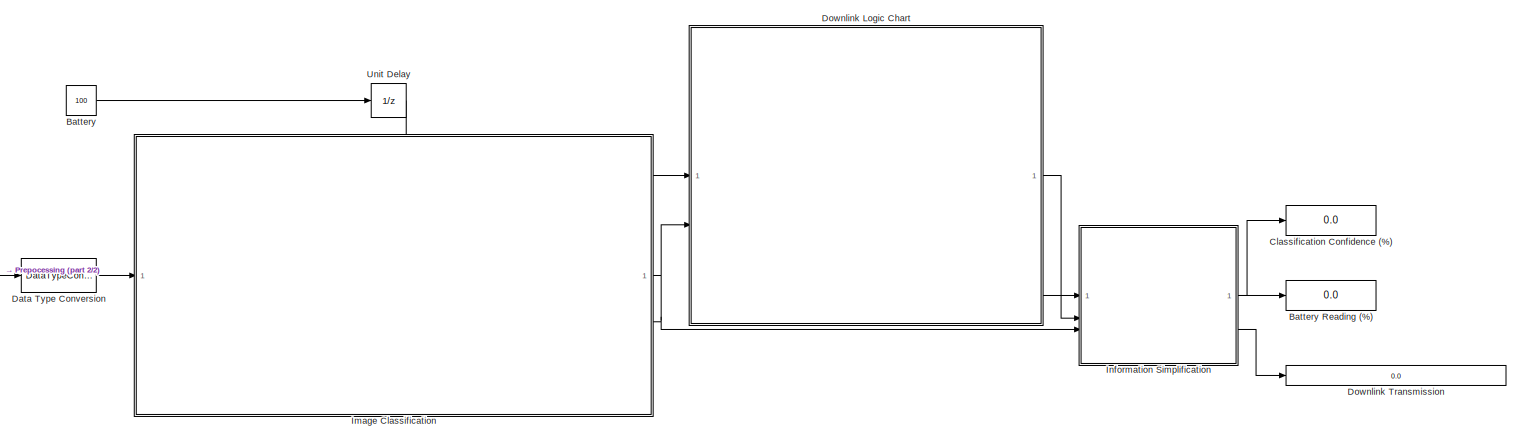
[diagram: root canvas - part 1/2, most of the canvas]
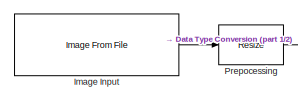
[diagram: root canvas - part 2/2, middle left region]
MODEL slx_531eb38d69e4
KIND model
CONFIG AbsTol = auto
CONFIG EnableMultiTasking = off
CONFIG FixedStep = auto
CONFIG InitFcn = net = load("Retrained_Wildfire_Classification_CNN.mat");\nimdsTest = imageDatastore("<userpath>\Documents\F.I.R.E.SAT Project\Code Files\Simulink\test", "IncludeSubfolders",true, "LabelSource","foldernames");\n\nclassNames = categories(imdsTest.Labels);
CONFIG MaxStep = auto
CONFIG MinStep = auto
CONFIG RelTol = 1e-3
CONFIG SampleTimeConstraint = Unconstrained
CONFIG SolverName = VariableStepAuto
CONFIG StartTime = 0.0
CONFIG StopTime = 10
BLOCK [Constant] Battery
  OutDataTypeStr = double
  Value = 100
BLOCK [Display] Battery Reading (%)
  Decimation = 1
BLOCK [Display] Classification Confidence (%)
  Decimation = 1
BLOCK [DataTypeConversion] Data Type Conversion
  OutDataTypeStr = single
  RndMeth = Floor
  SaturateOnIntegerOverflow = off
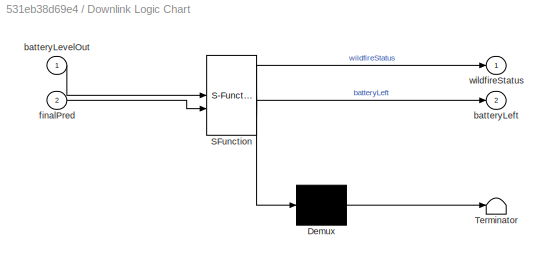
BLOCK [SubSystem] Downlink Logic Chart
  ErrorFcn = Stateflow.Translate.translate
  PermitHierarchicalResolution = ExplicitOnly
  SFBlockType = Chart
  TreatAsAtomicUnit = on
BLOCK [Demux] Downlink Logic Chart/ Demux 
  Outputs = 1
BLOCK [S-Function] Downlink Logic Chart/ SFunction 
  EnableBusSupport = off
  FunctionName = sf_sfun
  PortCounts = [2 3]
  SFcnIsStateOwnerBlock = off
  SFunctionDeploymentMode = off
  Tag = Stateflow S-Function 3
BLOCK [Terminator] Downlink Logic Chart/ Terminator 
BLOCK [Outport] Downlink Logic Chart/batteryLeft
  Port = 2
BLOCK [Inport] Downlink Logic Chart/batteryLevelOut
BLOCK [Inport] Downlink Logic Chart/finalPred
  Port = 2
BLOCK [Outport] Downlink Logic Chart/wildfireStatus
BLOCK [Display] Downlink Transmission
  Decimation = 1
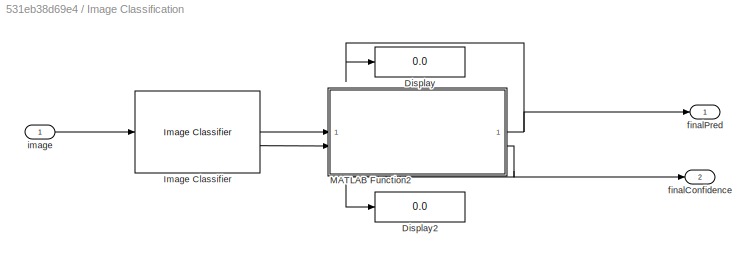
BLOCK [SubSystem] Image Classification
BLOCK [Display] Image Classification/Display
  Decimation = 1
BLOCK [Display] Image Classification/Display2
  Decimation = 1
BLOCK [Reference] Image Classification/Image Classifier  REF=deeplib/Image Classifier
  SourceBlock = deeplib/Image Classifier
  SourceType = Image Classifier
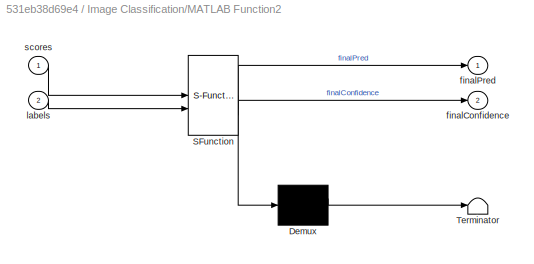
BLOCK [SubSystem] Image Classification/MATLAB Function2
  ErrorFcn = Stateflow.Translate.translate
  PermitHierarchicalResolution = ExplicitOnly
  SFBlockType = MATLAB Function
  TreatAsAtomicUnit = on
BLOCK [Demux] Image Classification/MATLAB Function2/ Demux 
  Outputs = 1
BLOCK [S-Function] Image Classification/MATLAB Function2/ SFunction 
  EnableBusSupport = off
  FunctionName = sf_sfun
  PortCounts = [2 3]
  SFcnIsStateOwnerBlock = off
  SFunctionDeploymentMode = off
  Tag = Stateflow S-Function 4
BLOCK [Terminator] Image Classification/MATLAB Function2/ Terminator 
BLOCK [Outport] Image Classification/MATLAB Function2/finalConfidence
  Port = 2
BLOCK [Outport] Image Classification/MATLAB Function2/finalPred
BLOCK [Inport] Image Classification/MATLAB Function2/labels
  Port = 2
BLOCK [Inport] Image Classification/MATLAB Function2/scores
BLOCK [Outport] Image Classification/finalConfidence
  Port = 2
BLOCK [Outport] Image Classification/finalPred
BLOCK [Inport] Image Classification/image
BLOCK [Reference] Image Input  REF=visionsources/Image From File
  SourceBlock = visionsources/Image From File
  SourceType = Image From File
  Tag = vipblks_nd
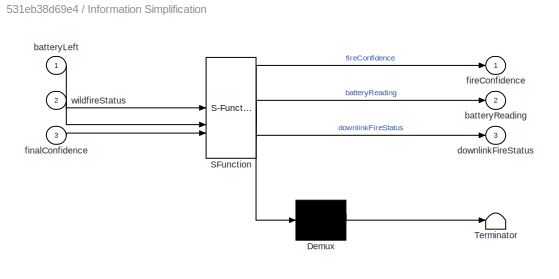
BLOCK [SubSystem] Information Simplification
  ErrorFcn = Stateflow.Translate.translate
  PermitHierarchicalResolution = ExplicitOnly
  SFBlockType = MATLAB Function
  TreatAsAtomicUnit = on
BLOCK [Demux] Information Simplification/ Demux 
  Outputs = 1
BLOCK [S-Function] Information Simplification/ SFunction 
  EnableBusSupport = off
  FunctionName = sf_sfun
  PortCounts = [3 4]
  SFcnIsStateOwnerBlock = off
  SFunctionDeploymentMode = off
  Tag = Stateflow S-Function 1
BLOCK [Terminator] Information Simplification/ Terminator 
BLOCK [Inport] Information Simplification/batteryLeft
BLOCK [Outport] Information Simplification/batteryReading
  Port = 2
BLOCK [Outport] Information Simplification/downlinkFireStatus
  Port = 3
BLOCK [Inport] Information Simplification/finalConfidence
  Port = 3
BLOCK [Outport] Information Simplification/fireConfidence
BLOCK [Inport] Information Simplification/wildfireStatus
  Port = 2
BLOCK [Reference] Prepocessing  REF=visiongeotforms/Resize
  SourceBlock = visiongeotforms/Resize
  SourceType = Resize
BLOCK [UnitDelay] Unit Delay
  HasFrameUpgradeWarning = on
  InitialCondition = 100
LINE Battery:1 -> Unit Delay:1
LINE Data Type Conversion:1 -> Image Classification:1
LINE Downlink Logic Chart:1 -> Information Simplification:2
LINE Downlink Logic Chart:2 -> Information Simplification:1
LINE Image Classification/Image Classifier:1 -> Image Classification/MATLAB Function2:1
LINE Image Classification/Image Classifier:2 -> Image Classification/MATLAB Function2:2
NET Image Classification/MATLAB Function2:1 -> Image Classification/Display:1, Image Classification/finalPred:1
NET Image Classification/MATLAB Function2:2 -> Image Classification/Display2:1, Image Classification/finalConfidence:1
LINE Image Classification/image:1 -> Image Classification/Image Classifier:1
LINE Image Classification:1 -> Downlink Logic Chart:2
LINE Image Classification:2 -> Information Simplification:3
LINE Image Input:1 -> Prepocessing:1
LINE Information Simplification:1 -> Classification Confidence (%):1
LINE Information Simplification:2 -> Battery Reading (%):1
LINE Information Simplification:3 -> Downlink Transmission:1
LINE Prepocessing:1 -> Data Type Conversion:1
LINE Unit Delay:1 -> Downlink Logic Chart:1
note: NET lines group one-source signal fan-out (src -> all destinations, sorted); 1:1 wires keep LINE
CHART Information Simplification states=1 transitions=1
  STATE_LABEL 'eML_blk_kernel()'
  STATE_LABEL 'SCRIPT:\nfunction [fireConfidence, batteryReading, downlinkFireStatus] = simplifiedInfo(batteryLeft, wildfireStatus, finalConfidence)\n\nfireConfidence = single(0);\nbatteryReading = single(batteryLeft);\ndownlinkFireStatus = "";\n\nif wildfireStatus == 10 && batteryLeft > 5\n    fireConfidence = single(finalConfidence);\n    downlinkFireStatus = "Wildfire Detected!";\nelseif batteryLeft < 5\n    fireConfide...<+253ch>'
CHART Downlink Logic Chart states=3 transitions=7
  STATE_LABEL 'Idle\nentry:\nif finalPred == 1 || finalPred == 0\n    wildfireStatus = double(finalPred);\nend\nduring:\nif double(finalPred) ~= prevFinalPred\n    prevFinalPred = double(finalPred);\n    signal = 3;\n    wildfireStatus = double(finalPred);\nend\nif signal == 3\n    if finalPred == 1 && batteryLevelOut >= 5\n        signal = 1;\n        powerUsed = powerUsed + 4;\n    elseif finalPred == 1 && batteryLevelOut < ...<+350ch>'
  STATE_LABEL 'ReadyToTransmit\nentry:\nsignal = 1;\nwildfireStatus = wildfireStatus + 1;\nduring:\nif finalPred == 1 && batteryLevelOut > 5\n    wildfireStatus = wildfireStatus + 1;\nelseif batteryLevelOut < 5\n    wildfireStatus = -1;\n    signal = 0;\nend\n'
  STATE_LABEL 'LowBattery\nentry:\nsignal = 0;\nif batteryLeft < 0\n    batteryLeft = 0;\nend\nduring:\nbatteryLeft = batteryLevelOut - powerUsed;\nend'
CHART Image Classification/MATLAB Function2 states=1 transitions=1
  STATE_LABEL 'eML_blk_kernel()'
  STATE_LABEL 'SCRIPT:\nfunction [finalPred, finalConfidence] = predOut(scores, labels)\n\n    finalConfidence = (max([scores(1), scores(2)])*100);\n    \n    if finalConfidence == scores(2)*100\n        finalPred = false;\n    else\n        finalPred = true;\n    end\n\nend\n\n    \n'
CHART  states=0 transitions=0
CHART  states=0 transitions=0
CHART  states=0 transitions=0
